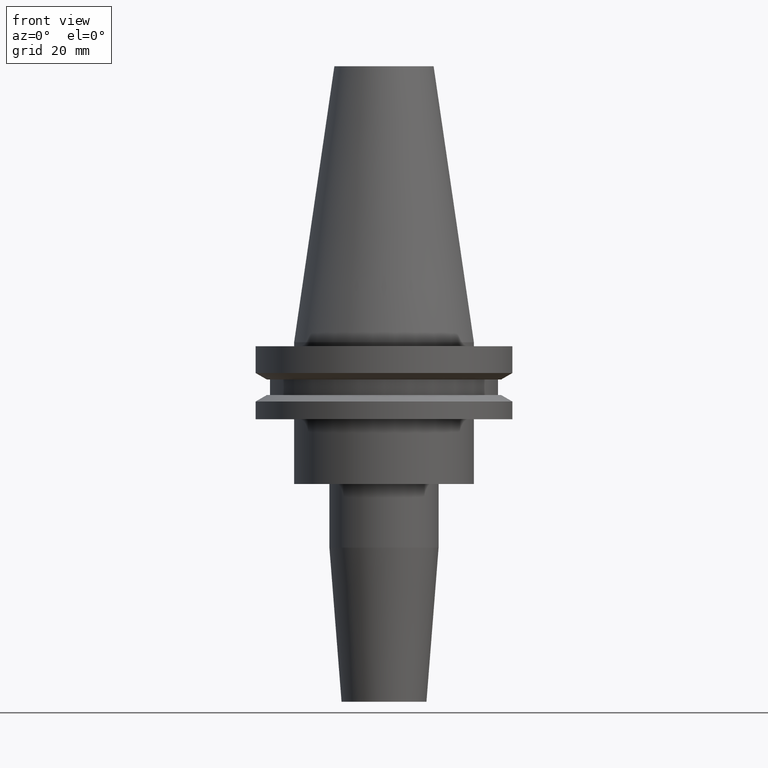
[diagram: clean part render]
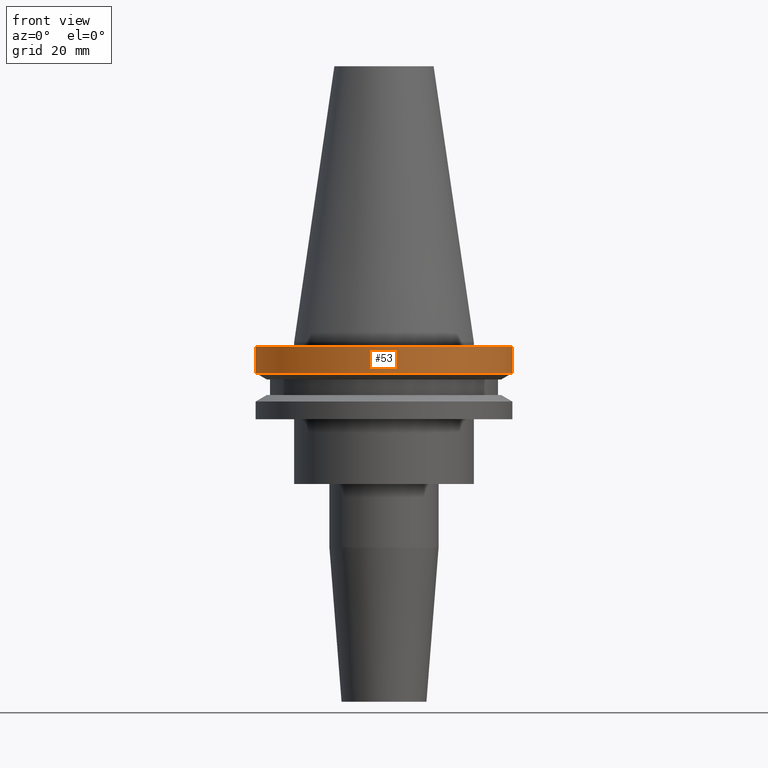
[diagram: same view with one face highlighted and labeled with its STEP entity id]
A machine part, front view. The second image highlights one B-rep face of the part: STEP entity #53.
In plain terms, the highlighted cylindrical surface (partial cylindrical patch) has radius 31.75 mm, axis along (-0, -0, 1).
Its self-contained STEP definition (entity closure, byte-faithful):
#4 = VECTOR ( 'NONE', #473, 1000.000000000000000 ) ;
#6 = CIRCLE ( 'NONE', #649, 31.75000000000000000 ) ;
#13 = ORIENTED_EDGE ( 'NONE', *, *, #509, .T. ) ;
#24 = CARTESIAN_POINT ( 'NONE',  ( -31.75000000000000000, 3.888253587292846476E-15, -1.000000000000000888 ) ) ;
#37 = DIRECTION ( 'NONE',  ( 1.000000000000000000, 0.000000000000000000, 0.000000000000000000 ) ) ;
#53 = ADVANCED_FACE ( 'NONE', ( #414 ), #678, .T. ) ;
#84 = CARTESIAN_POINT ( 'NONE',  ( 31.75000000000000000, 0.000000000000000000, -7.605276606597335842 ) ) ;
#91 = VERTEX_POINT ( 'NONE', #387 ) ;
#142 = ORIENTED_EDGE ( 'NONE', *, *, #325, .T. ) ;
#151 = EDGE_LOOP ( 'NONE', ( #624, #13, #142, #563 ) ) ;
#181 = CARTESIAN_POINT ( 'NONE',  ( -31.75000000000000000, 3.888253587292846476E-15, 68.25000000000000000 ) ) ;
#269 = VERTEX_POINT ( 'NONE', #84 ) ;
#324 = LINE ( 'NONE', #181, #591 ) ;
#325 = EDGE_CURVE ( 'NONE', #269, #91, #612, .T. ) ;
#328 = DIRECTION ( 'NONE',  ( -0.000000000000000000, -0.000000000000000000, 1.000000000000000000 ) ) ;
#358 = DIRECTION ( 'NONE',  ( -0.000000000000000000, -0.000000000000000000, 1.000000000000000000 ) ) ;
#360 = CARTESIAN_POINT ( 'NONE',  ( 0.000000000000000000, 0.000000000000000000, 68.25000000000000000 ) ) ;
#387 = CARTESIAN_POINT ( 'NONE',  ( 31.75000000000000000, 0.000000000000000000, -1.000000000000000888 ) ) ;
#414 = FACE_OUTER_BOUND ( 'NONE', #151, .T. ) ;
#422 = CARTESIAN_POINT ( 'NONE',  ( 0.000000000000000000, 0.000000000000000000, -7.605276606597335842 ) ) ;
#445 = DIRECTION ( 'NONE',  ( -0.000000000000000000, -0.000000000000000000, 1.000000000000000000 ) ) ;
#473 = DIRECTION ( 'NONE',  ( -0.000000000000000000, -0.000000000000000000, 1.000000000000000000 ) ) ;
#496 = AXIS2_PLACEMENT_3D ( 'NONE', #360, #622, #37 ) ;
#509 = EDGE_CURVE ( 'NONE', #825, #269, #6, .T. ) ;
#517 = DIRECTION ( 'NONE',  ( 1.000000000000000000, 0.000000000000000000, 0.000000000000000000 ) ) ;
#563 = ORIENTED_EDGE ( 'NONE', *, *, #602, .F. ) ;
#580 = EDGE_CURVE ( 'NONE', #825, #715, #324, .T. ) ;
#591 = VECTOR ( 'NONE', #445, 1000.000000000000000 ) ;
#602 = EDGE_CURVE ( 'NONE', #715, #91, #789, .T. ) ;
#612 = LINE ( 'NONE', #676, #4 ) ;
#617 = CARTESIAN_POINT ( 'NONE',  ( -31.75000000000000000, 3.888253587292846476E-15, -7.605276606597335842 ) ) ;
#622 = DIRECTION ( 'NONE',  ( -0.000000000000000000, -0.000000000000000000, 1.000000000000000000 ) ) ;
#624 = ORIENTED_EDGE ( 'NONE', *, *, #580, .F. ) ;
#635 = AXIS2_PLACEMENT_3D ( 'NONE', #711, #328, #517 ) ;
#649 = AXIS2_PLACEMENT_3D ( 'NONE', #422, #358, #684 ) ;
#676 = CARTESIAN_POINT ( 'NONE',  ( 31.75000000000000000, 0.000000000000000000, 68.25000000000000000 ) ) ;
#678 = CYLINDRICAL_SURFACE ( 'NONE', #496, 31.75000000000000000 ) ;
#684 = DIRECTION ( 'NONE',  ( 1.000000000000000000, 0.000000000000000000, 0.000000000000000000 ) ) ;
#711 = CARTESIAN_POINT ( 'NONE',  ( 0.000000000000000000, 0.000000000000000000, -1.000000000000000888 ) ) ;
#715 = VERTEX_POINT ( 'NONE', #24 ) ;
#789 = CIRCLE ( 'NONE', #635, 31.75000000000000000 ) ;
#825 = VERTEX_POINT ( 'NONE', #617 ) ;